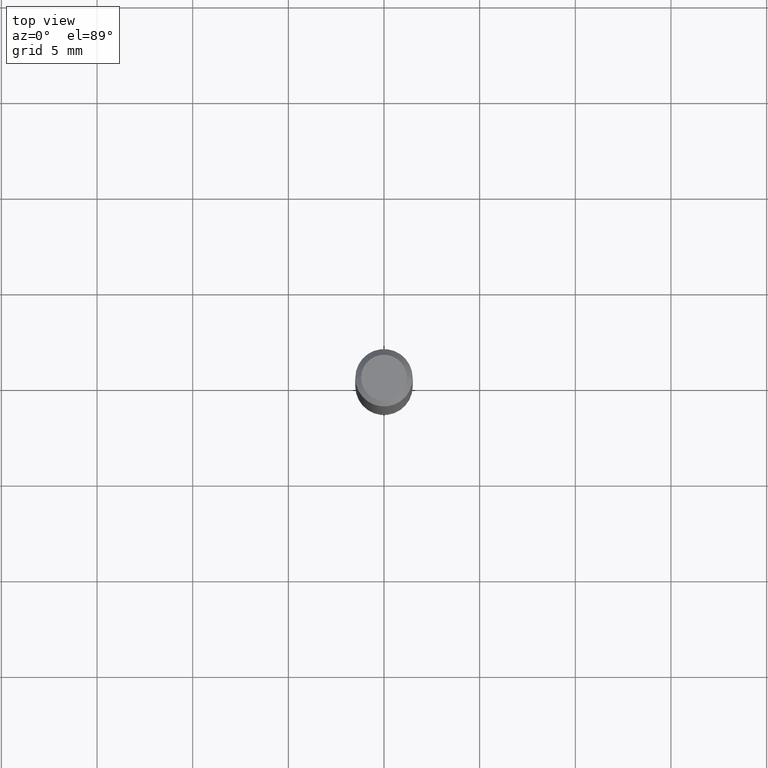
[diagram: clean part render]
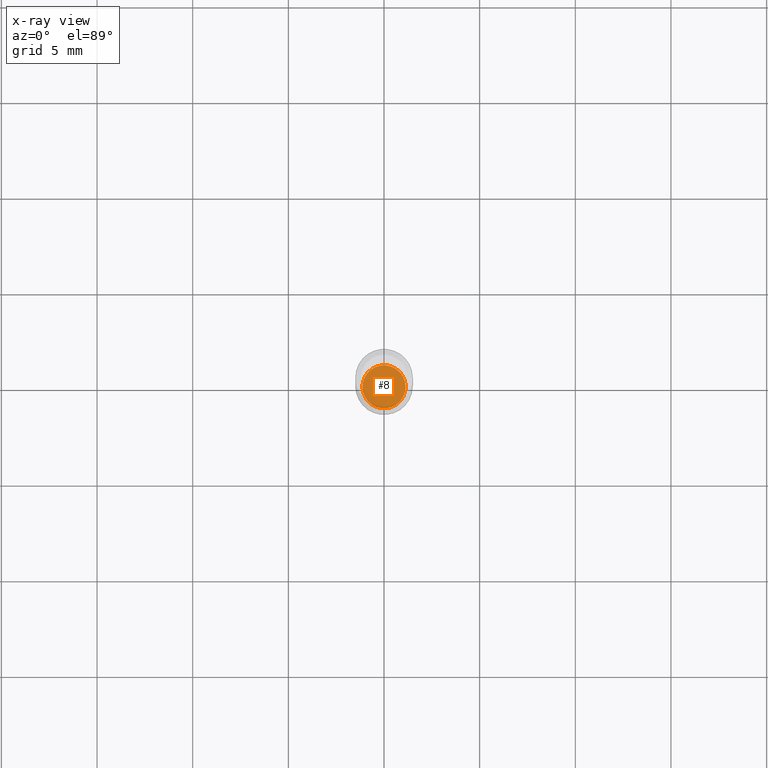
[diagram: x-ray — body ghosted, one internal face saturated and labeled with its STEP entity id]
A machine part, top view, then the same camera in x-ray: the body is ghosted and one INTERNAL B-rep face — a face not visible from any outside direction — is saturated and labeled: STEP entity #8.
In plain terms, the highlighted planar face has unit normal (-0, 0, 1).
Its self-contained STEP definition (entity closure, byte-faithful):
#8 = ADVANCED_FACE ( 'NONE', ( #167 ), #390, .F. ) ;
#56 = AXIS2_PLACEMENT_3D ( 'NONE', #290, #245, #466 ) ;
#82 = DIRECTION ( 'NONE',  ( -2.445468806185136597E-29, 3.491481338843145583E-15, 1.000000000000000000 ) ) ;
#97 = ORIENTED_EDGE ( 'NONE', *, *, #419, .F. ) ;
#123 = EDGE_CURVE ( 'NONE', #228, #322, #360, .T. ) ;
#158 = CARTESIAN_POINT ( 'NONE',  ( 2.676565608369631794E-29, -3.821426325363822773E-15, -1.094499999999999806 ) ) ;
#167 = FACE_OUTER_BOUND ( 'NONE', #421, .T. ) ;
#174 = ORIENTED_EDGE ( 'NONE', *, *, #123, .F. ) ;
#194 = DIRECTION ( 'NONE',  ( 1.000000000000000000, -6.982962677686262766E-15, 0.000000000000000000 ) ) ;
#228 = VERTEX_POINT ( 'NONE', #444 ) ;
#239 = CARTESIAN_POINT ( 'NONE',  ( 0.04440000000000000197, -4.131469868253092851E-15, -1.094499999999999806 ) ) ;
#245 = DIRECTION ( 'NONE',  ( -2.438088387897960049E-29, 3.491481338843145188E-15, 1.000000000000000000 ) ) ;
#256 = AXIS2_PLACEMENT_3D ( 'NONE', #261, #324, #486 ) ;
#261 = CARTESIAN_POINT ( 'NONE',  ( 2.676565608369631794E-29, -3.821426325363822773E-15, -1.094499999999999806 ) ) ;
#290 = CARTESIAN_POINT ( 'NONE',  ( 2.676565608369631794E-29, -3.821426325363822773E-15, -1.094499999999999806 ) ) ;
#322 = VERTEX_POINT ( 'NONE', #239 ) ;
#324 = DIRECTION ( 'NONE',  ( -2.445468806185136597E-29, 3.491481338843145583E-15, 1.000000000000000000 ) ) ;
#331 = CIRCLE ( 'NONE', #483, 0.04440000000000000197 ) ;
#360 = CIRCLE ( 'NONE', #256, 0.04440000000000000197 ) ;
#390 = PLANE ( 'NONE',  #56 ) ;
#419 = EDGE_CURVE ( 'NONE', #322, #228, #331, .T. ) ;
#421 = EDGE_LOOP ( 'NONE', ( #97, #174 ) ) ;
#444 = CARTESIAN_POINT ( 'NONE',  ( -0.04440000000000000197, -3.503296123512227125E-15, -1.094499999999999806 ) ) ;
#466 = DIRECTION ( 'NONE',  ( 1.000000000000000000, -6.982962677686265922E-15, 4.876176775795935793E-29 ) ) ;
#483 = AXIS2_PLACEMENT_3D ( 'NONE', #158, #82, #194 ) ;
#486 = DIRECTION ( 'NONE',  ( 1.000000000000000000, -6.982962677686262766E-15, 0.000000000000000000 ) ) ;